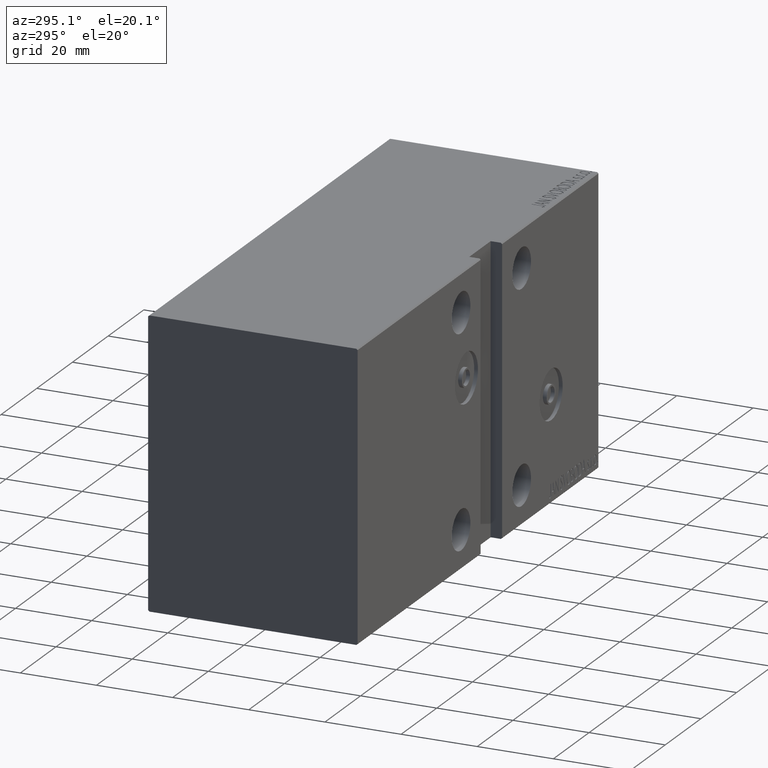
[diagram: clean part render]
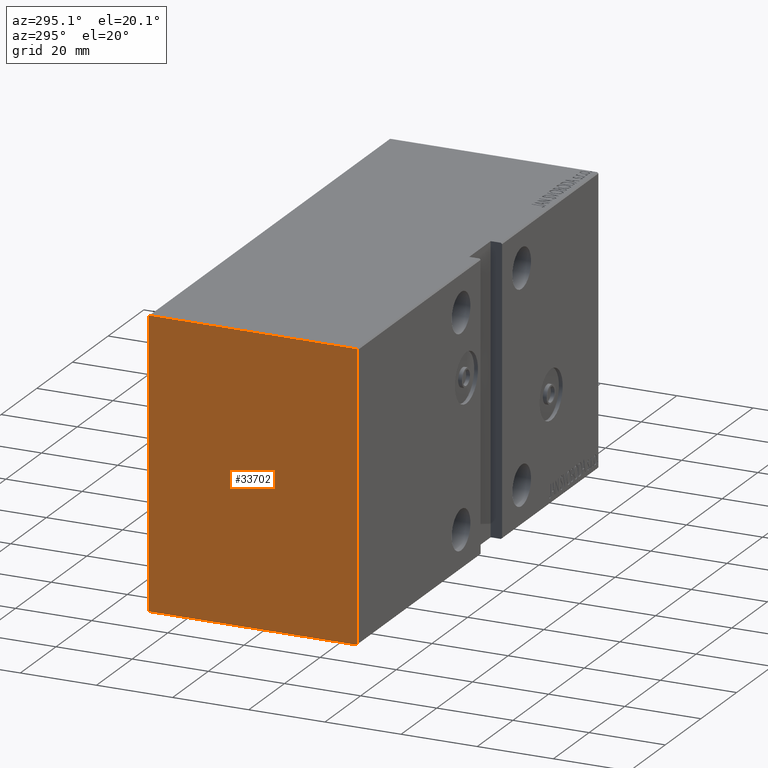
[diagram: same view with one face highlighted and labeled with its STEP entity id]
A machine part, auxiliary view. The second image highlights one B-rep face of the part: STEP entity #33702.
In plain terms, the highlighted planar face has unit normal (-1, -0, 0).
Its self-contained STEP definition (entity closure, byte-faithful):
#562 = DIRECTION ( 'NONE',  ( 0.000000000000000000, -9.251858538542970348E-17, 1.000000000000000000 ) ) ;
#629 = DIRECTION ( 'NONE',  ( 0.000000000000000000, -1.000000000000000000, 0.000000000000000000 ) ) ;
#843 = LINE ( 'NONE', #17658, #12696 ) ;
#3516 = CARTESIAN_POINT ( 'NONE',  ( 135.0000000000000000, -32.34999999999999432, -32.34999999999999432 ) ) ;
#4745 = VERTEX_POINT ( 'NONE', #21430 ) ;
#4906 = VECTOR ( 'NONE', #629, 1000.000000000000000 ) ;
#5144 = CARTESIAN_POINT ( 'NONE',  ( 135.0000000000000000, 27.49999999999999645, 37.20000000000001705 ) ) ;
#6614 = EDGE_CURVE ( 'NONE', #11675, #4745, #40537, .T. ) ;
#7060 = DIRECTION ( 'NONE',  ( 1.000000000000000000, 0.000000000000000000, 0.000000000000000000 ) ) ;
#8979 = VECTOR ( 'NONE', #10233, 1000.000000000000000 ) ;
#9976 = ORIENTED_EDGE ( 'NONE', *, *, #14349, .T. ) ;
#10233 = DIRECTION ( 'NONE',  ( 0.000000000000000000, 0.000000000000000000, -1.000000000000000000 ) ) ;
#10309 = EDGE_CURVE ( 'NONE', #43218, #10449, #843, .T. ) ;
#10449 = VERTEX_POINT ( 'NONE', #29365 ) ;
#10955 = CARTESIAN_POINT ( 'NONE',  ( 135.0000000000000000, 27.50000000000000355, -37.50000000000000000 ) ) ;
#11119 = ORIENTED_EDGE ( 'NONE', *, *, #12077, .T. ) ;
#11675 = VERTEX_POINT ( 'NONE', #31613 ) ;
#12077 = EDGE_CURVE ( 'NONE', #43580, #34846, #15766, .T. ) ;
#12438 = AXIS2_PLACEMENT_3D ( 'NONE', #27193, #7060, #17232 ) ;
#12696 = VECTOR ( 'NONE', #21631, 1000.000000000000000 ) ;
#13739 = CARTESIAN_POINT ( 'NONE',  ( 135.0000000000000000, 27.50000000000000355, -37.19999999999998863 ) ) ;
#13778 = CARTESIAN_POINT ( 'NONE',  ( 135.0000000000000000, -27.49999999999999645, 37.50000000000000711 ) ) ;
#14107 = VERTEX_POINT ( 'NONE', #13739 ) ;
#14121 = CARTESIAN_POINT ( 'NONE',  ( 135.0000000000000000, 32.34999999999999432, -32.34999999999999432 ) ) ;
#14349 = EDGE_CURVE ( 'NONE', #34846, #11675, #26531, .T. ) ;
#15440 = VECTOR ( 'NONE', #37879, 1000.000000000000114 ) ;
#15766 = LINE ( 'NONE', #18647, #23239 ) ;
#17232 = DIRECTION ( 'NONE',  ( 0.000000000000000000, 0.000000000000000000, -1.000000000000000000 ) ) ;
#17658 = CARTESIAN_POINT ( 'NONE',  ( 135.0000000000000000, -27.49999999999999645, -37.50000000000000711 ) ) ;
#18647 = CARTESIAN_POINT ( 'NONE',  ( 135.0000000000000000, 32.34999999999968168, 32.35000000000043485 ) ) ;
#18891 = ORIENTED_EDGE ( 'NONE', *, *, #40990, .T. ) ;
#19723 = EDGE_LOOP ( 'NONE', ( #28188, #22916, #33810, #11119, #9976, #32568, #18891, #27438 ) ) ;
#19969 = VECTOR ( 'NONE', #20972, 1000.000000000000114 ) ;
#20704 = CARTESIAN_POINT ( 'NONE',  ( 135.0000000000000000, -27.19999999999998863, -37.50000000000000711 ) ) ;
#20972 = DIRECTION ( 'NONE',  ( -0.000000000000000000, 0.7071067811865474617, 0.7071067811865474617 ) ) ;
#21430 = CARTESIAN_POINT ( 'NONE',  ( 135.0000000000000000, -27.49999999999999645, 37.19999999999999574 ) ) ;
#21567 = VERTEX_POINT ( 'NONE', #21667 ) ;
#21631 = DIRECTION ( 'NONE',  ( 0.000000000000000000, 1.000000000000000000, 1.261617073437677999E-16 ) ) ;
#21667 = CARTESIAN_POINT ( 'NONE',  ( 135.0000000000000000, -27.49999999999999645, -37.19999999999999574 ) ) ;
#22916 = ORIENTED_EDGE ( 'NONE', *, *, #27207, .T. ) ;
#23239 = VECTOR ( 'NONE', #32379, 1000.000000000000000 ) ;
#23447 = DIRECTION ( 'NONE',  ( -0.000000000000000000, 0.7071067811865474617, -0.7071067811865474617 ) ) ;
#24103 = LINE ( 'NONE', #3516, #29370 ) ;
#26531 = LINE ( 'NONE', #30940, #4906 ) ;
#27193 = CARTESIAN_POINT ( 'NONE',  ( 135.0000000000000000, 0.000000000000000000, 0.000000000000000000 ) ) ;
#27207 = EDGE_CURVE ( 'NONE', #10449, #14107, #33830, .T. ) ;
#27438 = ORIENTED_EDGE ( 'NONE', *, *, #33671, .T. ) ;
#28188 = ORIENTED_EDGE ( 'NONE', *, *, #10309, .T. ) ;
#29365 = CARTESIAN_POINT ( 'NONE',  ( 135.0000000000000000, 27.19999999999999574, -37.50000000000000000 ) ) ;
#29370 = VECTOR ( 'NONE', #23447, 1000.000000000000114 ) ;
#30080 = FACE_OUTER_BOUND ( 'NONE', #19723, .T. ) ;
#30940 = CARTESIAN_POINT ( 'NONE',  ( 135.0000000000000000, 27.49999999999999645, 37.50000000000000711 ) ) ;
#31100 = LINE ( 'NONE', #10955, #43600 ) ;
#31613 = CARTESIAN_POINT ( 'NONE',  ( 135.0000000000000000, -27.19999999999998863, 37.50000000000000711 ) ) ;
#32379 = DIRECTION ( 'NONE',  ( -0.000000000000000000, -0.7071067811865556774, 0.7071067811865393571 ) ) ;
#32568 = ORIENTED_EDGE ( 'NONE', *, *, #6614, .T. ) ;
#33671 = EDGE_CURVE ( 'NONE', #21567, #43218, #24103, .T. ) ;
#33702 = ADVANCED_FACE ( 'NONE', ( #30080 ), #40917, .T. ) ;
#33810 = ORIENTED_EDGE ( 'NONE', *, *, #41521, .T. ) ;
#33830 = LINE ( 'NONE', #14121, #19969 ) ;
#34846 = VERTEX_POINT ( 'NONE', #35974 ) ;
#35974 = CARTESIAN_POINT ( 'NONE',  ( 135.0000000000000000, 27.20000000000000284, 37.50000000000000711 ) ) ;
#37879 = DIRECTION ( 'NONE',  ( 0.000000000000000000, -0.7071067811865474617, -0.7071067811865474617 ) ) ;
#40537 = LINE ( 'NONE', #40755, #15440 ) ;
#40553 = LINE ( 'NONE', #13778, #8979 ) ;
#40755 = CARTESIAN_POINT ( 'NONE',  ( 135.0000000000000000, -32.34999999999999432, 32.34999999999999432 ) ) ;
#40917 = PLANE ( 'NONE',  #12438 ) ;
#40990 = EDGE_CURVE ( 'NONE', #4745, #21567, #40553, .T. ) ;
#41521 = EDGE_CURVE ( 'NONE', #14107, #43580, #31100, .T. ) ;
#43218 = VERTEX_POINT ( 'NONE', #20704 ) ;
#43580 = VERTEX_POINT ( 'NONE', #5144 ) ;
#43600 = VECTOR ( 'NONE', #562, 1000.000000000000000 ) ;